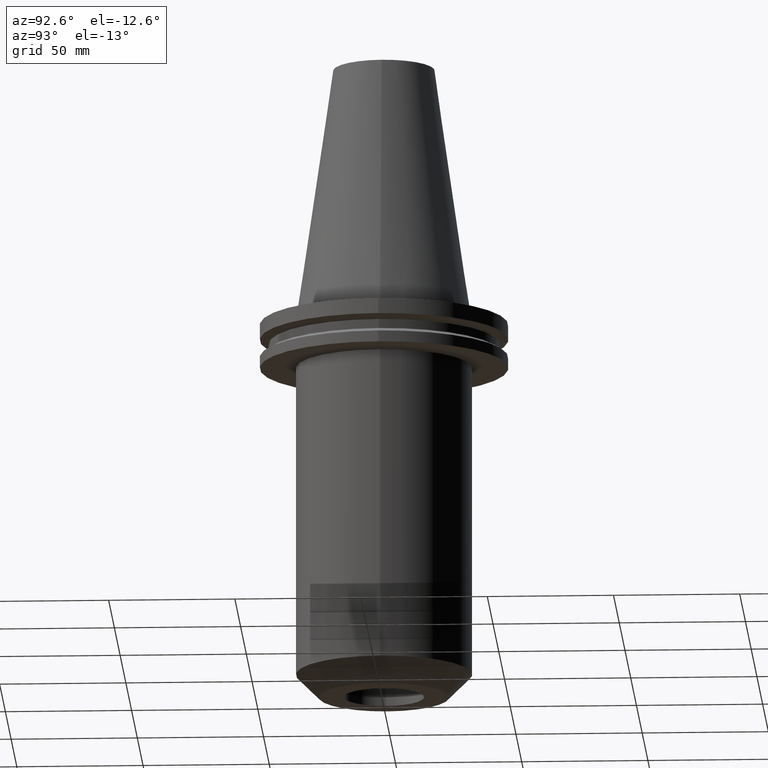
[diagram: clean part render]
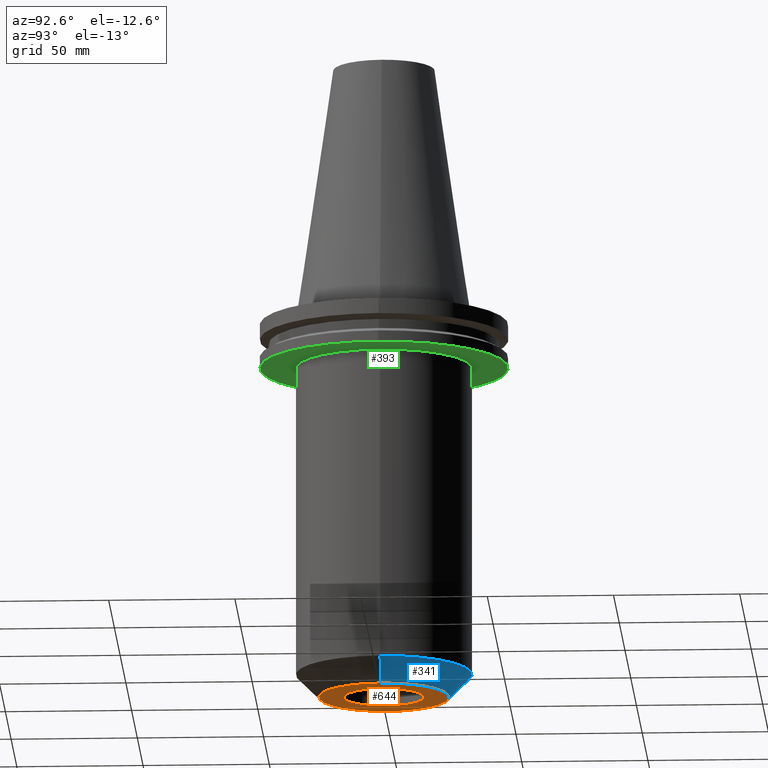
[diagram: same view with three faces highlighted in distinct colors, each labeled with its STEP entity id]
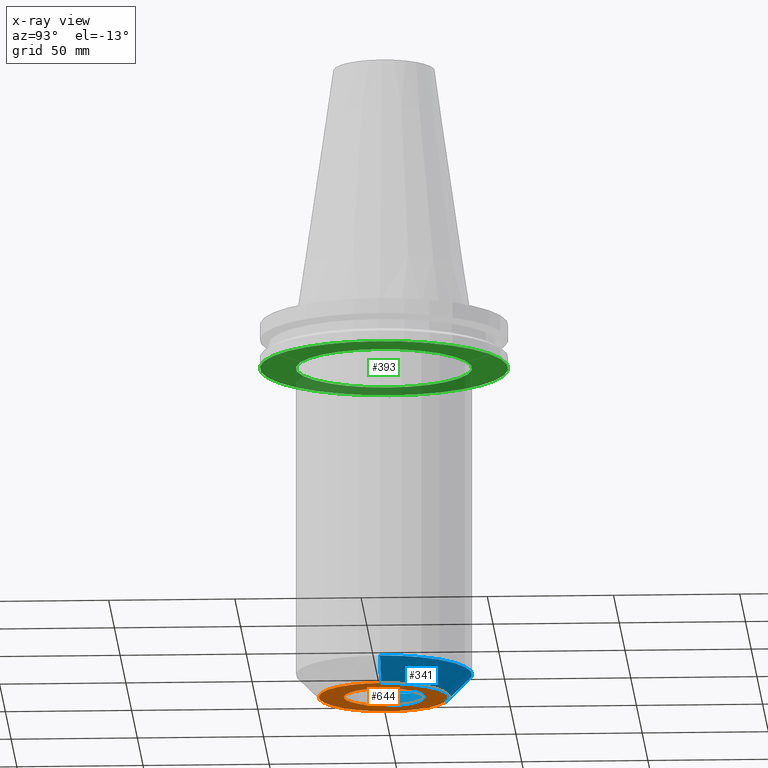
[diagram: x-ray of the same camera — body ghosted, the three highlighted faces saturated]
A machine part, auxiliary view with three faces highlighted in distinct colors.
The next image is the same camera in x-ray (body ghosted, the three faces saturated) — at least one of them is partly hidden behind the body in this view.
Their STEP definitions:

[orange] entity #644 — the highlighted planar face has unit normal (0, -0, 1).
#10 = DIRECTION ( 'NONE',  ( -0.000000000000000000, -0.000000000000000000, 1.000000000000000000 ) ) ;
#16 = ORIENTED_EDGE ( 'NONE', *, *, #390, .T. ) ;
#25 = FACE_OUTER_BOUND ( 'NONE', #266, .T. ) ;
#42 = ORIENTED_EDGE ( 'NONE', *, *, #457, .F. ) ;
#75 = CIRCLE ( 'NONE', #678, 15.87500000000000355 ) ;
#85 = FACE_BOUND ( 'NONE', #738, .T. ) ;
#97 = CIRCLE ( 'NONE', #602, 15.87500000000000355 ) ;
#143 = CARTESIAN_POINT ( 'NONE',  ( 0.000000000000000000, 0.000000000000000000, -152.4000000000000057 ) ) ;
#150 = CIRCLE ( 'NONE', #257, 25.82499999999999218 ) ;
#166 = DIRECTION ( 'NONE',  ( 1.000000000000000000, 0.000000000000000000, 0.000000000000000000 ) ) ;
#207 = CARTESIAN_POINT ( 'NONE',  ( 0.000000000000000000, 0.000000000000000000, -152.4000000000000057 ) ) ;
#219 = AXIS2_PLACEMENT_3D ( 'NONE', #701, #524, #743 ) ;
#240 = AXIS2_PLACEMENT_3D ( 'NONE', #207, #662, #350 ) ;
#257 = AXIS2_PLACEMENT_3D ( 'NONE', #685, #10, #614 ) ;
#266 = EDGE_LOOP ( 'NONE', ( #610, #42 ) ) ;
#274 = PLANE ( 'NONE',  #219 ) ;
#277 = CARTESIAN_POINT ( 'NONE',  ( 15.87500000000000355, 0.000000000000000000, -152.4000000000000057 ) ) ;
#313 = CARTESIAN_POINT ( 'NONE',  ( -25.82499999999999218, 3.719864652410084858E-15, -152.4000000000000057 ) ) ;
#342 = EDGE_CURVE ( 'NONE', #591, #599, #75, .T. ) ;
#350 = DIRECTION ( 'NONE',  ( 1.000000000000000000, 0.000000000000000000, 0.000000000000000000 ) ) ;
#358 = VERTEX_POINT ( 'NONE', #369 ) ;
#369 = CARTESIAN_POINT ( 'NONE',  ( 25.82499999999999218, 0.000000000000000000, -152.4000000000000057 ) ) ;
#390 = EDGE_CURVE ( 'NONE', #599, #591, #97, .T. ) ;
#395 = DIRECTION ( 'NONE',  ( -0.000000000000000000, -0.000000000000000000, 1.000000000000000000 ) ) ;
#423 = DIRECTION ( 'NONE',  ( -0.000000000000000000, -0.000000000000000000, 1.000000000000000000 ) ) ;
#457 = EDGE_CURVE ( 'NONE', #546, #358, #150, .T. ) ;
#521 = DIRECTION ( 'NONE',  ( 1.000000000000000000, 0.000000000000000000, 0.000000000000000000 ) ) ;
#524 = DIRECTION ( 'NONE',  ( 0.000000000000000000, -0.000000000000000000, 1.000000000000000000 ) ) ;
#546 = VERTEX_POINT ( 'NONE', #313 ) ;
#586 = CIRCLE ( 'NONE', #240, 25.82499999999999218 ) ;
#591 = VERTEX_POINT ( 'NONE', #695 ) ;
#599 = VERTEX_POINT ( 'NONE', #277 ) ;
#602 = AXIS2_PLACEMENT_3D ( 'NONE', #774, #423, #166 ) ;
#610 = ORIENTED_EDGE ( 'NONE', *, *, #775, .F. ) ;
#614 = DIRECTION ( 'NONE',  ( 1.000000000000000000, 0.000000000000000000, 0.000000000000000000 ) ) ;
#644 = ADVANCED_FACE ( 'NONE', ( #25, #85 ), #274, .F. ) ;
#662 = DIRECTION ( 'NONE',  ( -0.000000000000000000, -0.000000000000000000, 1.000000000000000000 ) ) ;
#678 = AXIS2_PLACEMENT_3D ( 'NONE', #143, #395, #521 ) ;
#685 = CARTESIAN_POINT ( 'NONE',  ( 0.000000000000000000, 0.000000000000000000, -152.4000000000000057 ) ) ;
#695 = CARTESIAN_POINT ( 'NONE',  ( -15.87500000000000355, 1.944126793646423632E-15, -152.4000000000000057 ) ) ;
#701 = CARTESIAN_POINT ( 'NONE',  ( 0.000000000000000000, 15.87500000000000355, -152.4000000000000057 ) ) ;
#731 = ORIENTED_EDGE ( 'NONE', *, *, #342, .T. ) ;
#738 = EDGE_LOOP ( 'NONE', ( #16, #731 ) ) ;
#743 = DIRECTION ( 'NONE',  ( 1.000000000000000000, 0.000000000000000000, 0.000000000000000000 ) ) ;
#774 = CARTESIAN_POINT ( 'NONE',  ( 0.000000000000000000, 0.000000000000000000, -152.4000000000000057 ) ) ;
#775 = EDGE_CURVE ( 'NONE', #358, #546, #586, .T. ) ;

[blue] entity #341 — the highlighted conical surface has half-angle 45 deg.
#3 = AXIS2_PLACEMENT_3D ( 'NONE', #120, #516, #404 ) ;
#4 = CARTESIAN_POINT ( 'NONE',  ( 25.82499999999999218, 0.000000000000000000, -152.4000000000000057 ) ) ;
#46 = CIRCLE ( 'NONE', #562, 34.92500000000000426 ) ;
#120 = CARTESIAN_POINT ( 'NONE',  ( 0.000000000000000000, 0.000000000000000000, -152.4000000000000057 ) ) ;
#136 = DIRECTION ( 'NONE',  ( 0.7071067811865481278, 0.000000000000000000, 0.7071067811865470176 ) ) ;
#153 = DIRECTION ( 'NONE',  ( -0.7071067811865481278, 8.659560562354940254E-17, 0.7071067811865470176 ) ) ;
#171 = CARTESIAN_POINT ( 'NONE',  ( -34.92500000000000426, 4.277078946022131676E-15, -143.3000000000000114 ) ) ;
#189 = ORIENTED_EDGE ( 'NONE', *, *, #279, .T. ) ;
#197 = EDGE_LOOP ( 'NONE', ( #483, #189, #746, #658 ) ) ;
#207 = CARTESIAN_POINT ( 'NONE',  ( 0.000000000000000000, 0.000000000000000000, -152.4000000000000057 ) ) ;
#216 = VECTOR ( 'NONE', #153, 1000.000000000000000 ) ;
#217 = CARTESIAN_POINT ( 'NONE',  ( -25.82499999999999218, 3.162650358798038830E-15, -152.4000000000000057 ) ) ;
#240 = AXIS2_PLACEMENT_3D ( 'NONE', #207, #662, #350 ) ;
#245 = DIRECTION ( 'NONE',  ( -0.000000000000000000, -0.000000000000000000, 1.000000000000000000 ) ) ;
#279 = EDGE_CURVE ( 'NONE', #546, #361, #334, .T. ) ;
#313 = CARTESIAN_POINT ( 'NONE',  ( -25.82499999999999218, 3.719864652410084858E-15, -152.4000000000000057 ) ) ;
#334 = LINE ( 'NONE', #217, #216 ) ;
#341 = ADVANCED_FACE ( 'NONE', ( #386 ), #647, .T. ) ;
#350 = DIRECTION ( 'NONE',  ( 1.000000000000000000, 0.000000000000000000, 0.000000000000000000 ) ) ;
#358 = VERTEX_POINT ( 'NONE', #369 ) ;
#361 = VERTEX_POINT ( 'NONE', #171 ) ;
#369 = CARTESIAN_POINT ( 'NONE',  ( 25.82499999999999218, 0.000000000000000000, -152.4000000000000057 ) ) ;
#379 = VERTEX_POINT ( 'NONE', #481 ) ;
#386 = FACE_OUTER_BOUND ( 'NONE', #197, .T. ) ;
#403 = VECTOR ( 'NONE', #136, 1000.000000000000000 ) ;
#404 = DIRECTION ( 'NONE',  ( 1.000000000000000000, 0.000000000000000000, 0.000000000000000000 ) ) ;
#452 = DIRECTION ( 'NONE',  ( 1.000000000000000000, 0.000000000000000000, 0.000000000000000000 ) ) ;
#481 = CARTESIAN_POINT ( 'NONE',  ( 34.92500000000000426, 0.000000000000000000, -143.3000000000000114 ) ) ;
#483 = ORIENTED_EDGE ( 'NONE', *, *, #775, .T. ) ;
#502 = EDGE_CURVE ( 'NONE', #358, #379, #736, .T. ) ;
#511 = CARTESIAN_POINT ( 'NONE',  ( 0.000000000000000000, 0.000000000000000000, -143.3000000000000114 ) ) ;
#514 = EDGE_CURVE ( 'NONE', #379, #361, #46, .T. ) ;
#516 = DIRECTION ( 'NONE',  ( -0.000000000000000000, -0.000000000000000000, 1.000000000000000000 ) ) ;
#546 = VERTEX_POINT ( 'NONE', #313 ) ;
#562 = AXIS2_PLACEMENT_3D ( 'NONE', #511, #245, #452 ) ;
#586 = CIRCLE ( 'NONE', #240, 25.82499999999999218 ) ;
#647 = CONICAL_SURFACE ( 'NONE', #3, 25.82499999999999218, 0.7853981633974490562 ) ;
#658 = ORIENTED_EDGE ( 'NONE', *, *, #502, .F. ) ;
#662 = DIRECTION ( 'NONE',  ( -0.000000000000000000, -0.000000000000000000, 1.000000000000000000 ) ) ;
#736 = LINE ( 'NONE', #4, #403 ) ;
#746 = ORIENTED_EDGE ( 'NONE', *, *, #514, .F. ) ;
#775 = EDGE_CURVE ( 'NONE', #358, #546, #586, .T. ) ;

[green] entity #393 — the highlighted planar face has unit normal (0, -0, 1).
#2 = ORIENTED_EDGE ( 'NONE', *, *, #21, .T. ) ;
#21 = EDGE_CURVE ( 'NONE', #620, #563, #518, .T. ) ;
#40 = DIRECTION ( 'NONE',  ( 1.000000000000000000, 0.000000000000000000, 0.000000000000000000 ) ) ;
#43 = FACE_BOUND ( 'NONE', #566, .T. ) ;
#55 = EDGE_CURVE ( 'NONE', #412, #425, #176, .T. ) ;
#60 = ORIENTED_EDGE ( 'NONE', *, *, #55, .F. ) ;
#71 = CARTESIAN_POINT ( 'NONE',  ( 0.000000000000000000, 0.000000000000000000, -19.04999999999999716 ) ) ;
#95 = AXIS2_PLACEMENT_3D ( 'NONE', #370, #355, #303 ) ;
#154 = CIRCLE ( 'NONE', #740, 34.92499999999999716 ) ;
#165 = EDGE_LOOP ( 'NONE', ( #536, #60 ) ) ;
#176 = CIRCLE ( 'NONE', #293, 49.21499999999998920 ) ;
#187 = DIRECTION ( 'NONE',  ( 1.000000000000000000, 0.000000000000000000, 0.000000000000000000 ) ) ;
#233 = DIRECTION ( 'NONE',  ( 0.000000000000000000, -0.000000000000000000, 1.000000000000000000 ) ) ;
#259 = DIRECTION ( 'NONE',  ( 1.000000000000000000, 0.000000000000000000, 0.000000000000000000 ) ) ;
#265 = EDGE_CURVE ( 'NONE', #425, #412, #530, .T. ) ;
#275 = CARTESIAN_POINT ( 'NONE',  ( 0.000000000000000000, 0.000000000000000000, -19.04999999999999716 ) ) ;
#293 = AXIS2_PLACEMENT_3D ( 'NONE', #726, #513, #187 ) ;
#303 = DIRECTION ( 'NONE',  ( 1.000000000000000000, 0.000000000000000000, 0.000000000000000000 ) ) ;
#318 = DIRECTION ( 'NONE',  ( -0.000000000000000000, -0.000000000000000000, 1.000000000000000000 ) ) ;
#347 = CARTESIAN_POINT ( 'NONE',  ( -49.21499999999998920, 6.027099222003697037E-15, -19.04999999999999716 ) ) ;
#355 = DIRECTION ( 'NONE',  ( -0.000000000000000000, -0.000000000000000000, 1.000000000000000000 ) ) ;
#370 = CARTESIAN_POINT ( 'NONE',  ( 0.000000000000000000, 0.000000000000000000, -19.04999999999999716 ) ) ;
#393 = ADVANCED_FACE ( 'NONE', ( #538, #43 ), #413, .F. ) ;
#412 = VERTEX_POINT ( 'NONE', #347 ) ;
#413 = PLANE ( 'NONE',  #558 ) ;
#425 = VERTEX_POINT ( 'NONE', #714 ) ;
#513 = DIRECTION ( 'NONE',  ( -0.000000000000000000, -0.000000000000000000, 1.000000000000000000 ) ) ;
#518 = CIRCLE ( 'NONE', #95, 34.92499999999999716 ) ;
#530 = CIRCLE ( 'NONE', #664, 49.21499999999998920 ) ;
#536 = ORIENTED_EDGE ( 'NONE', *, *, #265, .F. ) ;
#538 = FACE_OUTER_BOUND ( 'NONE', #165, .T. ) ;
#558 = AXIS2_PLACEMENT_3D ( 'NONE', #607, #233, #40 ) ;
#559 = ORIENTED_EDGE ( 'NONE', *, *, #577, .T. ) ;
#563 = VERTEX_POINT ( 'NONE', #564 ) ;
#564 = CARTESIAN_POINT ( 'NONE',  ( 34.92499999999999716, 0.000000000000000000, -19.04999999999999716 ) ) ;
#566 = EDGE_LOOP ( 'NONE', ( #559, #2 ) ) ;
#573 = DIRECTION ( 'NONE',  ( 1.000000000000000000, 0.000000000000000000, 0.000000000000000000 ) ) ;
#577 = EDGE_CURVE ( 'NONE', #563, #620, #154, .T. ) ;
#607 = CARTESIAN_POINT ( 'NONE',  ( 0.000000000000000000, 49.21499999999998920, -19.04999999999999716 ) ) ;
#620 = VERTEX_POINT ( 'NONE', #630 ) ;
#630 = CARTESIAN_POINT ( 'NONE',  ( -34.92499999999999716, 4.277078946022130887E-15, -19.04999999999999716 ) ) ;
#664 = AXIS2_PLACEMENT_3D ( 'NONE', #275, #696, #573 ) ;
#696 = DIRECTION ( 'NONE',  ( -0.000000000000000000, -0.000000000000000000, 1.000000000000000000 ) ) ;
#714 = CARTESIAN_POINT ( 'NONE',  ( 49.21499999999998920, 0.000000000000000000, -19.04999999999999716 ) ) ;
#726 = CARTESIAN_POINT ( 'NONE',  ( 0.000000000000000000, 0.000000000000000000, -19.04999999999999716 ) ) ;
#740 = AXIS2_PLACEMENT_3D ( 'NONE', #71, #318, #259 ) ;